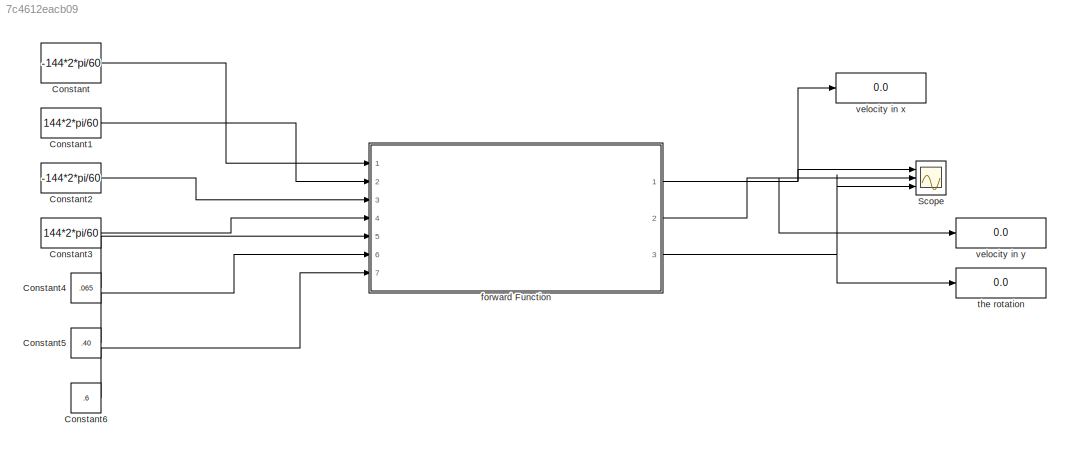
MODEL slx_7c4612eacb09
KIND model
CONFIG AbsTol = auto
CONFIG EnableMultiTasking = off
CONFIG FixedStep = auto
CONFIG MaxStep = auto
CONFIG MinStep = auto
CONFIG RelTol = 1e-3
CONFIG SampleTimeConstraint = Unconstrained
CONFIG SolverName = VariableStepAuto
CONFIG StartTime = 0.0
CONFIG StopTime = 10.0
BLOCK [Constant] Constant
  Value = -144*2*pi/60
BLOCK [Constant] Constant1
  Value = 144*2*pi/60
BLOCK [Constant] Constant2
  Value = -144*2*pi/60
BLOCK [Constant] Constant3
  Value = 144*2*pi/60
BLOCK [Constant] Constant4
  Value = .065
BLOCK [Constant] Constant5
  Value = .40
BLOCK [Constant] Constant6
  Value = .6
BLOCK [Scope] Scope
  Floating = off
  NumInputPorts = 3
  Ports = [3]
  ScopeSpecificationString = Simulink.scopes.TimeScopeBlockCfg('CurrentConfiguration', extmgr.ConfigurationSet(extmgr.Configuration('Core','General UI',true),extmgr.Configuration('Core','Source UI',true),extmgr.Configuration('Sources','WiredSimulink',true),extmgr.Configuration('Visuals','Time Domain',true,'SerializedDisplays',{struct('MinYLimReal','-0.24504','MaxYLimReal','2.2054','YLabelReal','','MinYLimMag','0.00000','MaxYL...<+1409ch>
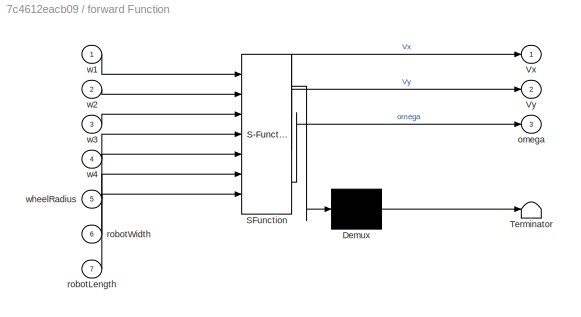
BLOCK [SubSystem] forward Function
  ErrorFcn = Stateflow.Translate.translate
  PermitHierarchicalResolution = ExplicitOnly
  Ports = [7, 3]
  RequestExecContextInheritance = off
  SFBlockType = MATLAB Function
  TreatAsAtomicUnit = on
BLOCK [Demux] forward Function/ Demux 
  Outputs = 1
  Ports = [1, 1]
BLOCK [S-Function] forward Function/ SFunction 
  EnableBusSupport = on
  FunctionName = sf_sfun
  PortCounts = [7 4]
  Ports = [7, 4]
  SFcnIsStateOwnerBlock = off
  SFunctionDeploymentMode = off
  Tag = Stateflow S-Function 2
BLOCK [Terminator] forward Function/ Terminator 
BLOCK [Outport] forward Function/Vx
BLOCK [Outport] forward Function/Vy
  Port = 2
BLOCK [Outport] forward Function/omega
  Port = 3
BLOCK [Inport] forward Function/robotLength
  Port = 7
BLOCK [Inport] forward Function/robotWidth
  Port = 6
BLOCK [Inport] forward Function/w1
BLOCK [Inport] forward Function/w2
  Port = 2
BLOCK [Inport] forward Function/w3
  Port = 3
BLOCK [Inport] forward Function/w4
  Port = 4
BLOCK [Inport] forward Function/wheelRadius
  Port = 5
BLOCK [Display] the rotation
  Decimation = 1
  Ports = [1]
BLOCK [Display] velocity in x
  Decimation = 1
  Ports = [1]
BLOCK [Display] velocity in y
  Decimation = 1
  Ports = [1]
LINE Constant1:1 -> forward Function:2
LINE Constant2:1 -> forward Function:3
LINE Constant3:1 -> forward Function:4
LINE Constant4:1 -> forward Function:5
LINE Constant5:1 -> forward Function:6
LINE Constant6:1 -> forward Function:7
LINE Constant:1 -> forward Function:1
NET forward Function:1 -> Scope:1, velocity in x:1
NET forward Function:2 -> Scope:2, velocity in y:1
NET forward Function:3 -> Scope:3, the rotation:1
note: NET lines group one-source signal fan-out (src -> all destinations, sorted); 1:1 wires keep LINE
CHART forward Function states=1 transitions=1
  STATE_LABEL 'eML_blk_kernel()'
  STATE_LABEL 'SCRIPT:\nfunction [Vx, Vy, omega] = mecanumForwardKinematics(w1, w2, w3, w4, wheelRadius, robotWidth, robotLength)\n    % Forward Kinematics for Mecanum Wheeled Robot\n    R = wheelRadius;\n    L = robotWidth / 2;\n    d = robotLength / 2;\n    o=L+d;\n\n    M = [\n         1   ,1   ,1    , 1 ;\n        -1   ,1   ,1    ,-1 ;\n        -1/o ,1/o ,-1/o ,1/o; \n    ];\n\n    W = [w1; w2; w3; w4];\n    X_dot = R/4.*M...<+71ch>'
CHART  states=0 transitions=0
